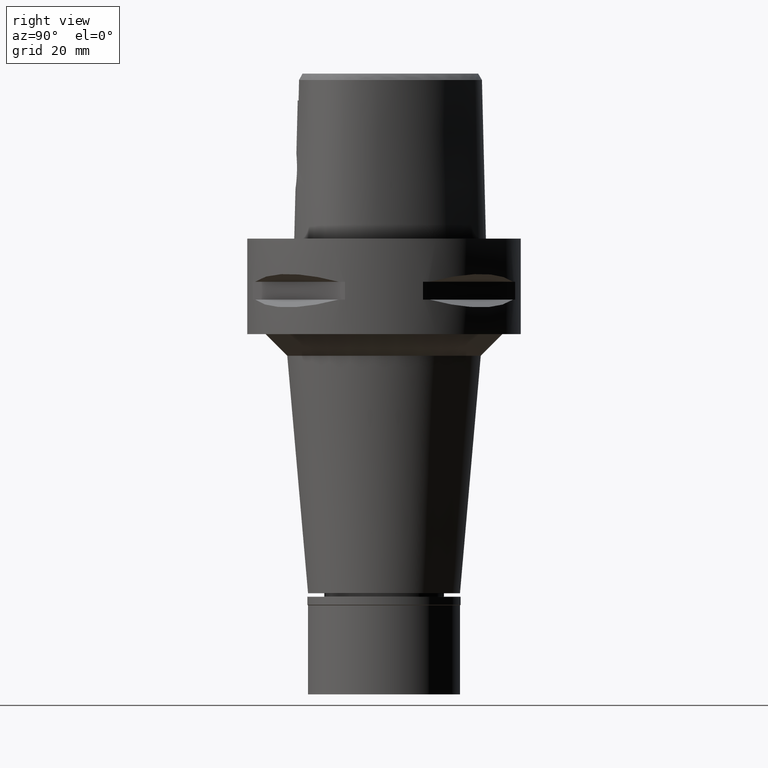
[diagram: clean part render]
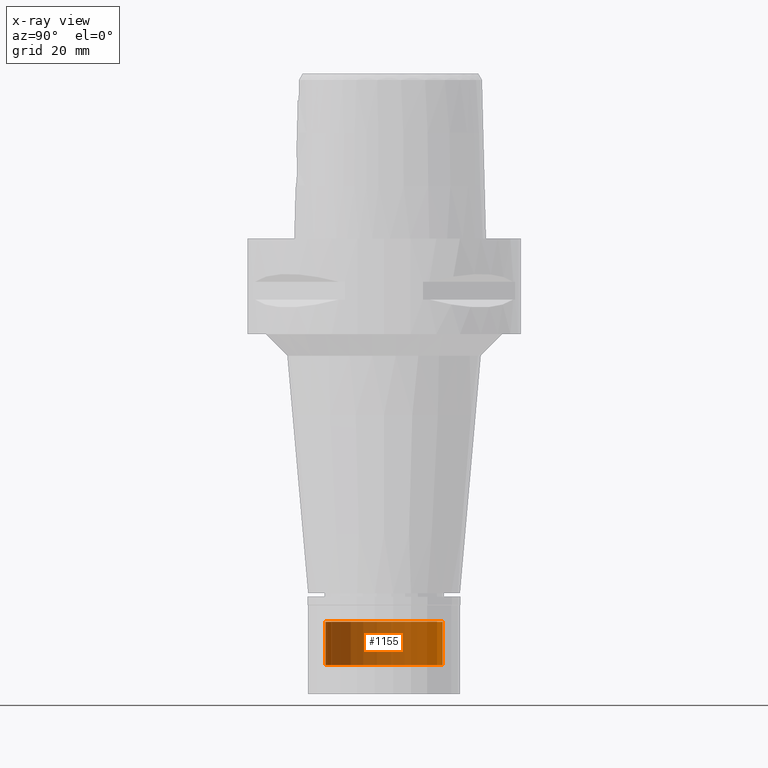
[diagram: x-ray — body ghosted, one internal face saturated and labeled with its STEP entity id]
A machine part, right view, then the same camera in x-ray: the body is ghosted and one INTERNAL B-rep face — a face not visible from any outside direction — is saturated and labeled: STEP entity #1155.
In plain terms, the highlighted cylindrical surface (partial cylindrical patch) has radius 13.5 mm, axis along (0, 0, -1).
Its self-contained STEP definition (entity closure, byte-faithful):
#37 = DIRECTION ( 'NONE',  ( 0.0000000000000000000, 0.0000000000000000000, -1.000000000000000000 ) ) ;
#101 = CIRCLE ( 'NONE', #2438, 13.50000000000000000 ) ;
#125 = VERTEX_POINT ( 'NONE', #4143 ) ;
#139 = DIRECTION ( 'NONE',  ( 0.0000000000000000000, -1.000000000000000000, 0.0000000000000000000 ) ) ;
#277 = EDGE_LOOP ( 'NONE', ( #3146, #876, #3543, #597 ) ) ;
#597 = ORIENTED_EDGE ( 'NONE', *, *, #1418, .T. ) ;
#876 = ORIENTED_EDGE ( 'NONE', *, *, #1203, .F. ) ;
#1020 = EDGE_CURVE ( 'NONE', #125, #4022, #2504, .T. ) ;
#1155 = ADVANCED_FACE ( 'NONE', ( #2067 ), #3567, .T. ) ;
#1203 = EDGE_CURVE ( 'NONE', #125, #3625, #3945, .T. ) ;
#1398 = AXIS2_PLACEMENT_3D ( 'NONE', #1727, #2904, #4104 ) ;
#1418 = EDGE_CURVE ( 'NONE', #4022, #2384, #2653, .T. ) ;
#1684 = DIRECTION ( 'NONE',  ( 0.0000000000000000000, 0.0000000000000000000, -1.000000000000000000 ) ) ;
#1727 = CARTESIAN_POINT ( 'NONE',  ( 0.0000000000000000000, 1.284838189324999924E-14, -88.29999999999999716 ) ) ;
#2067 = FACE_OUTER_BOUND ( 'NONE', #277, .T. ) ;
#2260 = VECTOR ( 'NONE', #1684, 1000.000000000000000 ) ;
#2384 = VERTEX_POINT ( 'NONE', #3548 ) ;
#2429 = AXIS2_PLACEMENT_3D ( 'NONE', #3616, #3667, #139 ) ;
#2438 = AXIS2_PLACEMENT_3D ( 'NONE', #4474, #2545, #4913 ) ;
#2504 = CIRCLE ( 'NONE', #1398, 13.50000000000000000 ) ;
#2545 = DIRECTION ( 'NONE',  ( 0.0000000000000000000, 0.0000000000000000000, 1.000000000000000000 ) ) ;
#2653 = LINE ( 'NONE', #4563, #3324 ) ;
#2904 = DIRECTION ( 'NONE',  ( 0.0000000000000000000, 0.0000000000000000000, -1.000000000000000000 ) ) ;
#2928 = EDGE_CURVE ( 'NONE', #2384, #3625, #101, .T. ) ;
#3146 = ORIENTED_EDGE ( 'NONE', *, *, #2928, .T. ) ;
#3155 = CARTESIAN_POINT ( 'NONE',  ( 0.0000000000000000000, -13.50000000000000000, -88.29999999999999716 ) ) ;
#3324 = VECTOR ( 'NONE', #37, 1000.000000000000000 ) ;
#3543 = ORIENTED_EDGE ( 'NONE', *, *, #1020, .T. ) ;
#3548 = CARTESIAN_POINT ( 'NONE',  ( 0.0000000000000000000, 13.50000000000000000, -98.29999999999999716 ) ) ;
#3567 = CYLINDRICAL_SURFACE ( 'NONE', #2429, 13.50000000000000000 ) ;
#3616 = CARTESIAN_POINT ( 'NONE',  ( 0.0000000000000000000, 1.284838189324999924E-14, 4.915000000000000036 ) ) ;
#3625 = VERTEX_POINT ( 'NONE', #4321 ) ;
#3667 = DIRECTION ( 'NONE',  ( 0.0000000000000000000, 0.0000000000000000000, -1.000000000000000000 ) ) ;
#3945 = LINE ( 'NONE', #3155, #2260 ) ;
#4022 = VERTEX_POINT ( 'NONE', #4486 ) ;
#4104 = DIRECTION ( 'NONE',  ( 0.0000000000000000000, -1.000000000000000000, 0.0000000000000000000 ) ) ;
#4143 = CARTESIAN_POINT ( 'NONE',  ( 0.0000000000000000000, -13.50000000000000000, -88.29999999999999716 ) ) ;
#4321 = CARTESIAN_POINT ( 'NONE',  ( 0.0000000000000000000, -13.50000000000000000, -98.29999999999999716 ) ) ;
#4474 = CARTESIAN_POINT ( 'NONE',  ( 0.0000000000000000000, 1.284838189324999924E-14, -98.29999999999999716 ) ) ;
#4486 = CARTESIAN_POINT ( 'NONE',  ( 0.0000000000000000000, 13.50000000000000000, -88.29999999999999716 ) ) ;
#4563 = CARTESIAN_POINT ( 'NONE',  ( 0.0000000000000000000, 13.50000000000000000, -88.29999999999999716 ) ) ;
#4913 = DIRECTION ( 'NONE',  ( 0.0000000000000000000, 1.000000000000000000, 0.0000000000000000000 ) ) ;